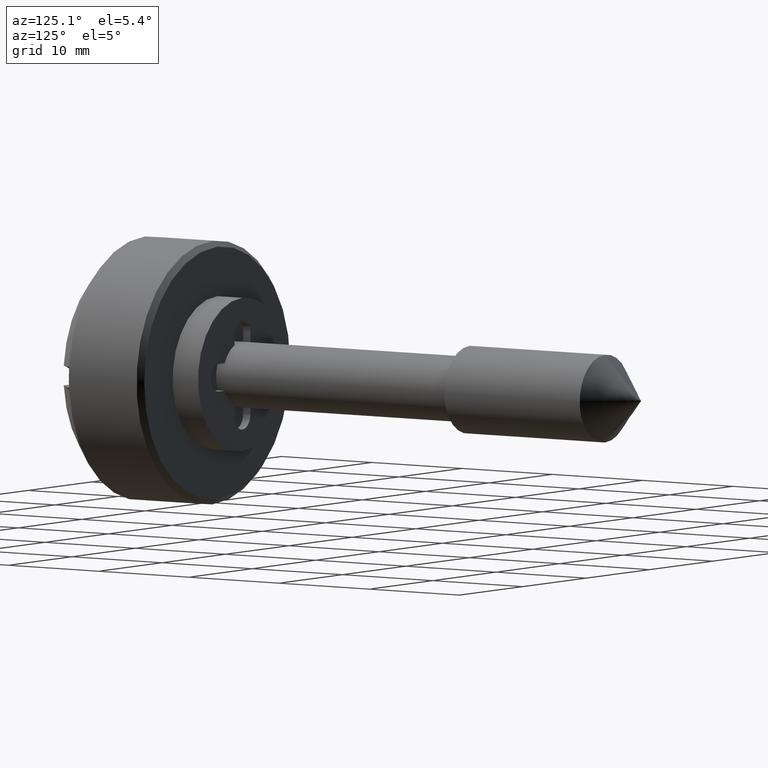
[diagram: clean part render]
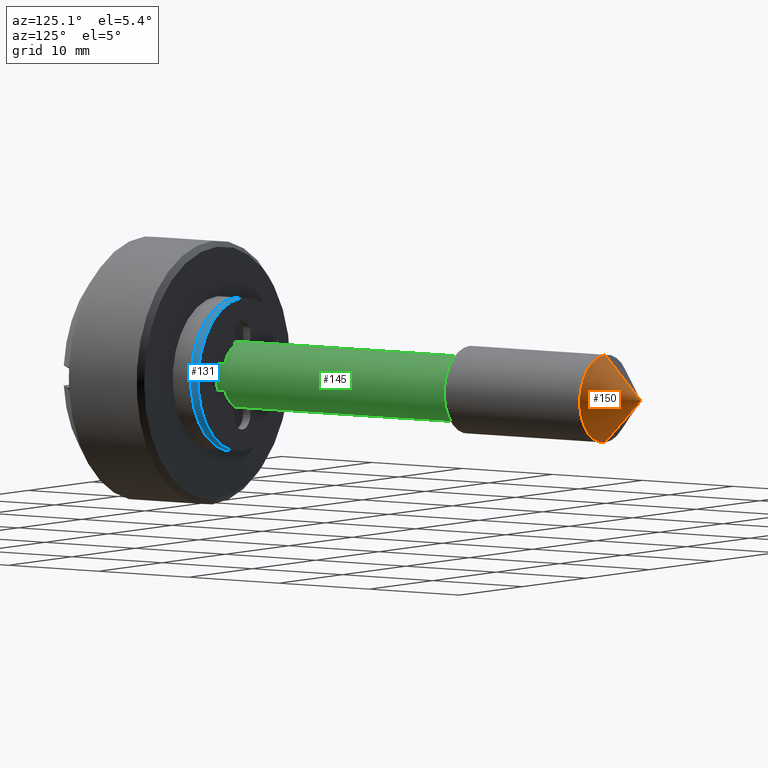
[diagram: same view with three faces highlighted in distinct colors, each labeled with its STEP entity id]
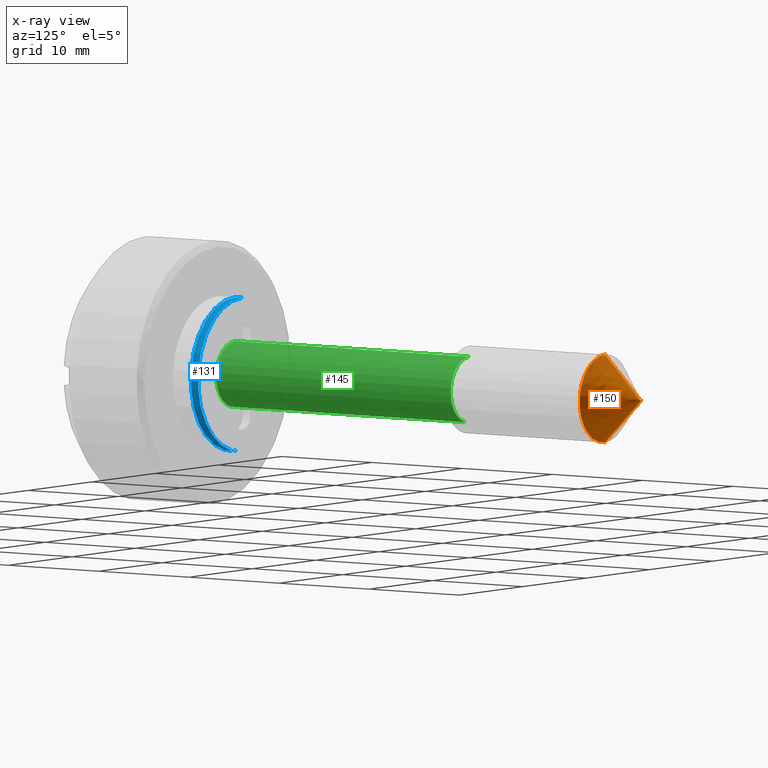
[diagram: x-ray of the same camera — body ghosted, the three highlighted faces saturated]
A machine part, auxiliary view with three faces highlighted in distinct colors.
The next image is the same camera in x-ray (body ghosted, the three faces saturated) — at least one of them is partly hidden behind the body in this view.
Their STEP definitions:

[orange] entity #150 — the highlighted face is a freeform B-spline surface patch.
#150=ADVANCED_FACE('',(#540),#539,.T.);
#539=( BOUNDED_SURFACE() B_SPLINE_SURFACE( 2,1,((#786,#787),(#788,#789),(#790,#791),(#792,#793),(#794,#795)), .UNSPECIFIED.,.F.,.F.,.F.) B_SPLINE_SURFACE_WITH_KNOTS((3,2,3),(2,2),(0.00000000000E+00,5.00000000000E-01,1.00000000000E+00),(0.00000000000E+00,1.00000000000E+00), .UNSPECIFIED. ) GEOMETRIC_REPRESENTATION_ITEM() RATIONAL_B_SPLINE_SURFACE(((1.00000000000E+00,1.00000000000E+00),(7.07106781187E-01,7.07106781187E-01),(1.00000000000E+00,1.00000000000E+00),(7.07106781187E-01,7.07106781187E-01),(1.00000000000E+00,1.00000000000E+00))) REPRESENTATION_ITEM('') SURFACE() );
#540=FACE_OUTER_BOUND('',#796,.T.);
#786=CARTESIAN_POINT('',(4.50000000000E+01,0.00000000000E+00,0.00000000000E+00));
#787=CARTESIAN_POINT('',(4.10000000000E+01,-9.79717439318E-16,-4.00000000000E+00));
#788=CARTESIAN_POINT('',(4.50000000000E+01,0.00000000000E+00,0.00000000000E+00));
#789=CARTESIAN_POINT('',(4.10000000000E+01,-4.00000000000E+00,-4.00000000000E+00));
#790=CARTESIAN_POINT('',(4.50000000000E+01,0.00000000000E+00,0.00000000000E+00));
#791=CARTESIAN_POINT('',(4.10000000000E+01,-4.00000000000E+00,7.34788079488E-16));
#792=CARTESIAN_POINT('',(4.50000000000E+01,0.00000000000E+00,0.00000000000E+00));
#793=CARTESIAN_POINT('',(4.10000000000E+01,-4.00000000000E+00,4.00000000000E+00));
#794=CARTESIAN_POINT('',(4.50000000000E+01,0.00000000000E+00,0.00000000000E+00));
#795=CARTESIAN_POINT('',(4.10000000000E+01,4.89858719659E-16,4.00000000000E+00));
#796=EDGE_LOOP('',(#1008,#1009,#1010));
#1008=ORIENTED_EDGE('',*,*,#1125,.F.);
#1009=ORIENTED_EDGE('',*,*,#1126,.F.);
#1010=ORIENTED_EDGE('',*,*,#1127,.T.);
#1125=EDGE_CURVE('',#1745,#1744,#1764,.T.);
#1126=EDGE_CURVE('',#1770,#1745,#1771,.T.);
#1127=EDGE_CURVE('',#1770,#1744,#1777,.T.);
#1744=VERTEX_POINT('',#2169);
#1745=VERTEX_POINT('',#2170);
#1764=CIRCLE('',#2182,4.00000000000E+00);
#1770=VERTEX_POINT('',#2183);
#1771=(BOUNDED_CURVE() B_SPLINE_CURVE(1,(#2184,#2185),.UNSPECIFIED.,.F.,.F.) B_SPLINE_CURVE_WITH_KNOTS((2,2),(0.00000000000E+00,1.00000000000E+00),.UNSPECIFIED.) CURVE() GEOMETRIC_REPRESENTATION_ITEM() RATIONAL_B_SPLINE_CURVE((1.00000000000E+00,1.00000000000E+00)) REPRESENTATION_ITEM('') );
#1777=(BOUNDED_CURVE() B_SPLINE_CURVE(1,(#2186,#2187),.UNSPECIFIED.,.F.,.F.) B_SPLINE_CURVE_WITH_KNOTS((2,2),(0.00000000000E+00,1.00000000000E+00),.UNSPECIFIED.) CURVE() GEOMETRIC_REPRESENTATION_ITEM() RATIONAL_B_SPLINE_CURVE((7.50000000000E-01,7.50000000000E-01)) REPRESENTATION_ITEM('') );
#2169=CARTESIAN_POINT('',(4.10000000000E+01,0.00000000000E+00,4.00000000000E+00));
#2170=CARTESIAN_POINT('',(4.10000000000E+01,4.44089209850E-16,-4.00000000000E+00));
#2179=CARTESIAN_POINT('',(4.10000000000E+01,0.00000000000E+00,0.00000000000E+00));
#2180=DIRECTION('',(-1.00000000000E+00,0.00000000000E+00,0.00000000000E+00));
#2181=DIRECTION('',(0.00000000000E+00,-1.22460635382E-16,1.00000000000E+00));
#2182=AXIS2_PLACEMENT_3D('',#2179,#2180,#2181);
#2183=CARTESIAN_POINT('',(4.50000000000E+01,0.00000000000E+00,0.00000000000E+00));
#2184=CARTESIAN_POINT('',(4.50000000000E+01,0.00000000000E+00,0.00000000000E+00));
#2185=CARTESIAN_POINT('',(4.10000000000E+01,-9.79717439318E-16,-4.00000000000E+00));
#2186=CARTESIAN_POINT('',(4.50000000000E+01,0.00000000000E+00,0.00000000000E+00));
#2187=CARTESIAN_POINT('',(4.10000000000E+01,1.03620815632E-15,4.00000000000E+00));

[blue] entity #131 — the highlighted cylindrical surface (partial cylindrical patch) has radius 7 mm, axis along (0, 1, 0).
#131=ADVANCED_FACE('',(#347),#346,.T.);
#346=CYLINDRICAL_SURFACE('',#679,7.00000000000E+00);
#347=FACE_OUTER_BOUND('',#680,.T.);
#676=CARTESIAN_POINT('',(0.00000000000E+00,1.00000000000E+03,0.00000000000E+00));
#677=DIRECTION('',(-0.00000000000E+00,1.00000000000E+00,-0.00000000000E+00));
#678=DIRECTION('',(1.22464679915E-16,0.00000000000E+00,-1.00000000000E+00));
#679=AXIS2_PLACEMENT_3D('',#676,#677,#678);
#680=EDGE_LOOP('',(#934,#935,#936,#937));
#934=ORIENTED_EDGE('',*,*,#1064,.F.);
#935=ORIENTED_EDGE('',*,*,#1082,.T.);
#936=ORIENTED_EDGE('',*,*,#1040,.T.);
#937=ORIENTED_EDGE('',*,*,#1083,.F.);
#1040=EDGE_CURVE('',#1198,#1199,#1200,.T.);
#1064=EDGE_CURVE('',#1355,#1354,#1362,.T.);
#1082=EDGE_CURVE('',#1355,#1198,#1478,.T.);
#1083=EDGE_CURVE('',#1354,#1199,#1484,.T.);
#1198=VERTEX_POINT('',#1837);
#1199=VERTEX_POINT('',#1838);
#1200=CIRCLE('',#1842,7.00000000000E+00);
#1354=VERTEX_POINT('',#1934);
#1355=VERTEX_POINT('',#1935);
#1362=CIRCLE('',#1943,7.00000000000E+00);
#1478=(BOUNDED_CURVE() B_SPLINE_CURVE(1,(#2007,#2008),.UNSPECIFIED.,.F.,.F.) B_SPLINE_CURVE_WITH_KNOTS((2,2),(8.33332935974E-02,9.16666633252E-01),.UNSPECIFIED.) CURVE() GEOMETRIC_REPRESENTATION_ITEM() RATIONAL_B_SPLINE_CURVE((1.00000000000E+00,1.00000000000E+00)) REPRESENTATION_ITEM('') );
#1484=(BOUNDED_CURVE() B_SPLINE_CURVE(1,(#2009,#2010),.UNSPECIFIED.,.F.,.F.) B_SPLINE_CURVE_WITH_KNOTS((2,2),(8.33333333334E-02,9.16666666667E-01),.UNSPECIFIED.) CURVE() GEOMETRIC_REPRESENTATION_ITEM() RATIONAL_B_SPLINE_CURVE((7.50000000000E-01,7.50000000000E-01)) REPRESENTATION_ITEM('') );
#1837=CARTESIAN_POINT('',(8.88178419700E-16,8.00000000000E-01,-7.00000000000E+00));
#1838=CARTESIAN_POINT('',(0.00000000000E+00,8.00000000000E-01,7.00000000000E+00));
#1839=CARTESIAN_POINT('',(0.00000000000E+00,8.00000000000E-01,0.00000000000E+00));
#1840=DIRECTION('',(-0.00000000000E+00,-1.00000000000E+00,0.00000000000E+00));
#1841=DIRECTION('',(-1.22460635382E-16,0.00000000000E+00,1.00000000000E+00));
#1842=AXIS2_PLACEMENT_3D('',#1839,#1840,#1841);
#1934=CARTESIAN_POINT('',(0.00000000000E+00,0.00000000000E+00,7.00000000000E+00));
#1935=CARTESIAN_POINT('',(8.88178419700E-16,0.00000000000E+00,-7.00000000000E+00));
#1940=CARTESIAN_POINT('',(0.00000000000E+00,0.00000000000E+00,0.00000000000E+00));
#1941=DIRECTION('',(-0.00000000000E+00,-1.00000000000E+00,0.00000000000E+00));
#1942=DIRECTION('',(-1.22460635382E-16,0.00000000000E+00,1.00000000000E+00));
#1943=AXIS2_PLACEMENT_3D('',#1940,#1941,#1942);
#2007=CARTESIAN_POINT('',(8.57252759403E-16,-3.81465210669E-08,-7.00000000000E+00));
#2008=CARTESIAN_POINT('',(8.57252759403E-16,7.99999967922E-01,-7.00000000000E+00));
#2009=CARTESIAN_POINT('',(-5.92118946467E-16,0.00000000000E+00,7.00000000000E+00));
#2010=CARTESIAN_POINT('',(-5.92118946467E-16,8.00000000000E-01,7.00000000000E+00));

[green] entity #145 — the highlighted cylindrical surface (edge-blend (fillet) strip) has radius 3 mm, axis along (0, 1, 0).
#145=ADVANCED_FACE('',(#490),#489,.T.);
#489=CYLINDRICAL_SURFACE('',#752,3.00000000000E+00);
#490=FACE_OUTER_BOUND('',#753,.T.);
#749=CARTESIAN_POINT('',(1.00000000000E+03,0.00000000000E+00,0.00000000000E+00));
#750=DIRECTION('',(1.00000000000E+00,-0.00000000000E+00,-0.00000000000E+00));
#751=DIRECTION('',(-0.00000000000E+00,-0.00000000000E+00,-1.00000000000E+00));
#752=AXIS2_PLACEMENT_3D('',#749,#750,#751);
#753=EDGE_LOOP('',(#988,#989,#990,#991));
#988=ORIENTED_EDGE('',*,*,#1086,.T.);
#989=ORIENTED_EDGE('',*,*,#1118,.T.);
#990=ORIENTED_EDGE('',*,*,#1098,.F.);
#991=ORIENTED_EDGE('',*,*,#1119,.F.);
#1086=EDGE_CURVE('',#1504,#1505,#1506,.T.);
#1098=EDGE_CURVE('',#1582,#1581,#1589,.T.);
#1118=EDGE_CURVE('',#1505,#1581,#1720,.T.);
#1119=EDGE_CURVE('',#1504,#1582,#1726,.T.);
#1504=VERTEX_POINT('',#2021);
#1505=VERTEX_POINT('',#2022);
#1506=CIRCLE('',#2026,3.00000000000E+00);
#1581=VERTEX_POINT('',#2075);
#1582=VERTEX_POINT('',#2076);
#1589=CIRCLE('',#2084,3.00000000000E+00);
#1720=(BOUNDED_CURVE() B_SPLINE_CURVE(1,(#2161,#2162),.UNSPECIFIED.,.F.,.F.) B_SPLINE_CURVE_WITH_KNOTS((2,2),(8.33333328360E-02,9.16666665505E-01),.UNSPECIFIED.) CURVE() GEOMETRIC_REPRESENTATION_ITEM() RATIONAL_B_SPLINE_CURVE((1.00000000000E+00,1.00000000000E+00)) REPRESENTATION_ITEM('') );
#1726=(BOUNDED_CURVE() B_SPLINE_CURVE(1,(#2163,#2164),.UNSPECIFIED.,.F.,.F.) B_SPLINE_CURVE_WITH_KNOTS((2,2),(8.33333333333E-02,9.16666666667E-01),.UNSPECIFIED.) CURVE() GEOMETRIC_REPRESENTATION_ITEM() RATIONAL_B_SPLINE_CURVE((7.50000000000E-01,7.50000000000E-01)) REPRESENTATION_ITEM('') );
#2021=CARTESIAN_POINT('',(0.00000000000E+00,-1.48029736617E-16,3.00000000000E+00));
#2022=CARTESIAN_POINT('',(0.00000000000E+00,0.00000000000E+00,-3.00000000000E+00));
#2023=CARTESIAN_POINT('',(0.00000000000E+00,0.00000000000E+00,0.00000000000E+00));
#2024=DIRECTION('',(1.00000000000E+00,0.00000000000E+00,0.00000000000E+00));
#2025=DIRECTION('',(0.00000000000E+00,-1.22460635382E-16,-1.00000000000E+00));
#2026=AXIS2_PLACEMENT_3D('',#2023,#2024,#2025);
#2075=CARTESIAN_POINT('',(2.60000000000E+01,0.00000000000E+00,-3.00000000000E+00));
#2076=CARTESIAN_POINT('',(2.60000000000E+01,-1.48029736617E-16,3.00000000000E+00));
#2081=CARTESIAN_POINT('',(2.60000000000E+01,0.00000000000E+00,0.00000000000E+00));
#2082=DIRECTION('',(1.00000000000E+00,0.00000000000E+00,0.00000000000E+00));
#2083=DIRECTION('',(0.00000000000E+00,-1.22460635382E-16,-1.00000000000E+00));
#2084=AXIS2_PLACEMENT_3D('',#2081,#2082,#2083);
#2161=CARTESIAN_POINT('',(-1.55180268635E-08,0.00000000000E+00,-3.00000000000E+00));
#2162=CARTESIAN_POINT('',(2.59999999637E+01,0.00000000000E+00,-3.00000000000E+00));
#2163=CARTESIAN_POINT('',(0.00000000000E+00,-1.48029736617E-16,3.00000000000E+00));
#2164=CARTESIAN_POINT('',(2.60000000000E+01,-1.48029736617E-16,3.00000000000E+00));